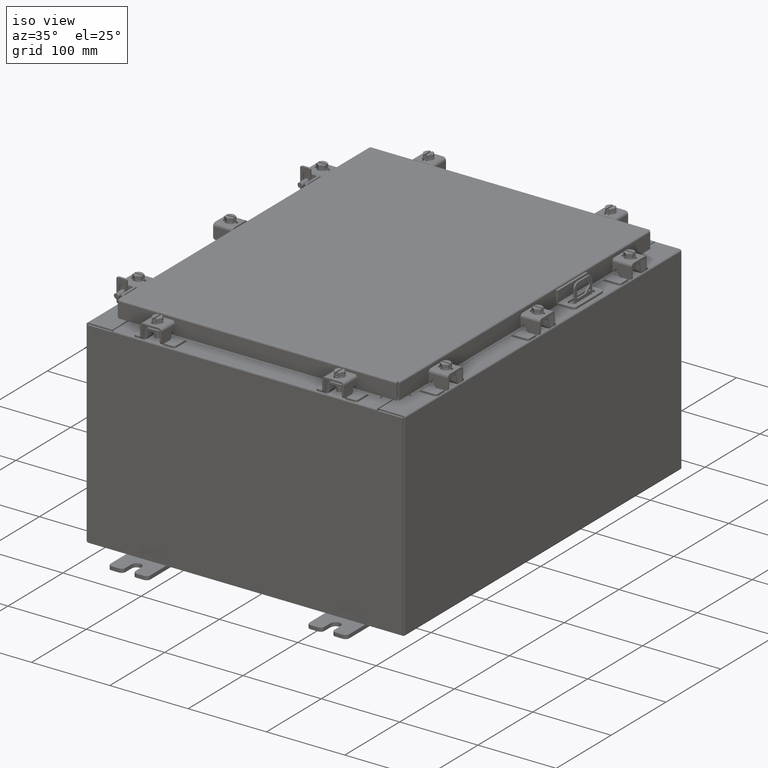
[diagram: clean part render]
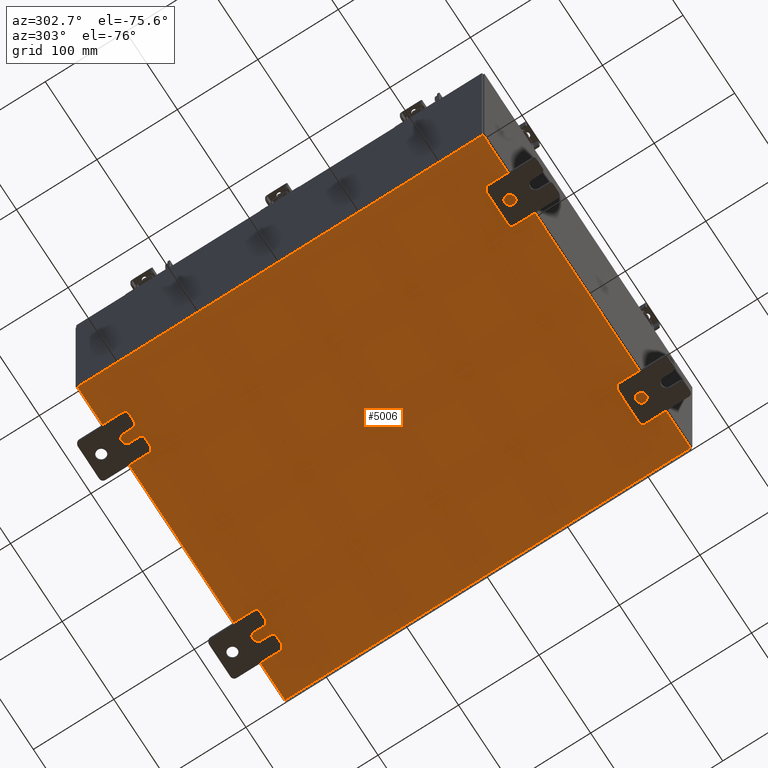
[diagram: tour spotlight — one face highlighted and labeled with its STEP entity id]
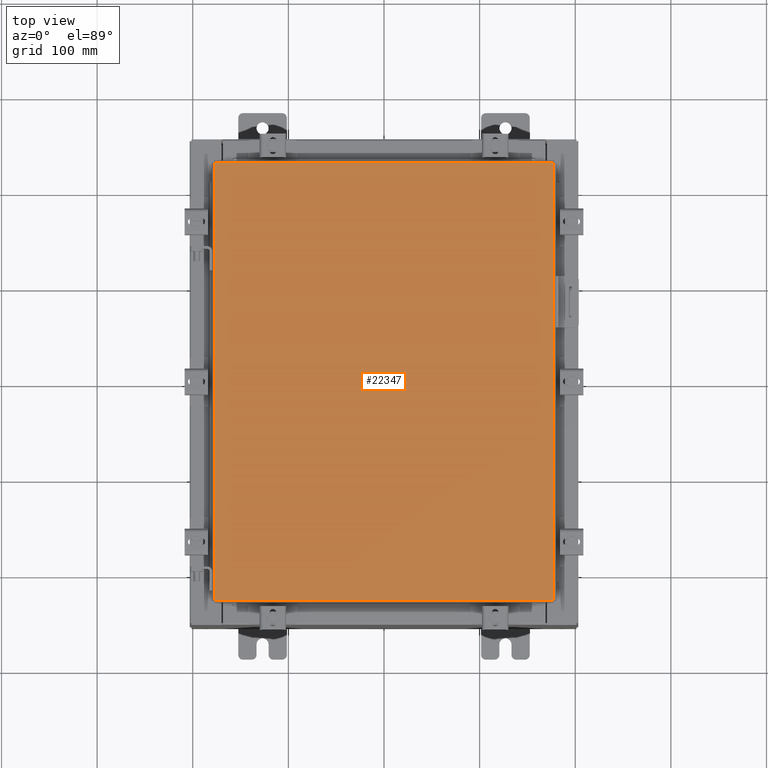
[diagram: tour spotlight — one face highlighted and labeled with its STEP entity id]
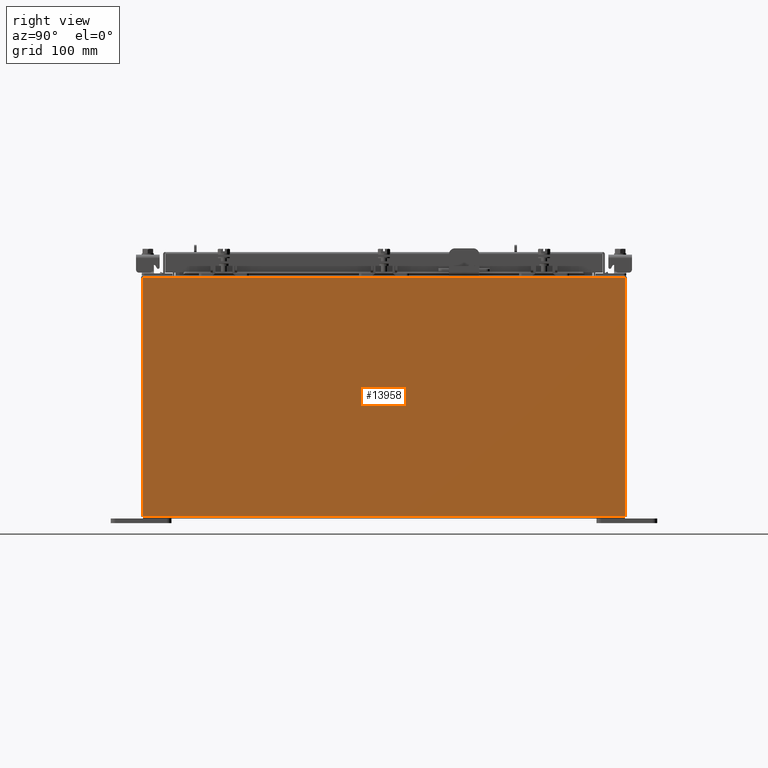
[diagram: tour spotlight — one face highlighted and labeled with its STEP entity id]
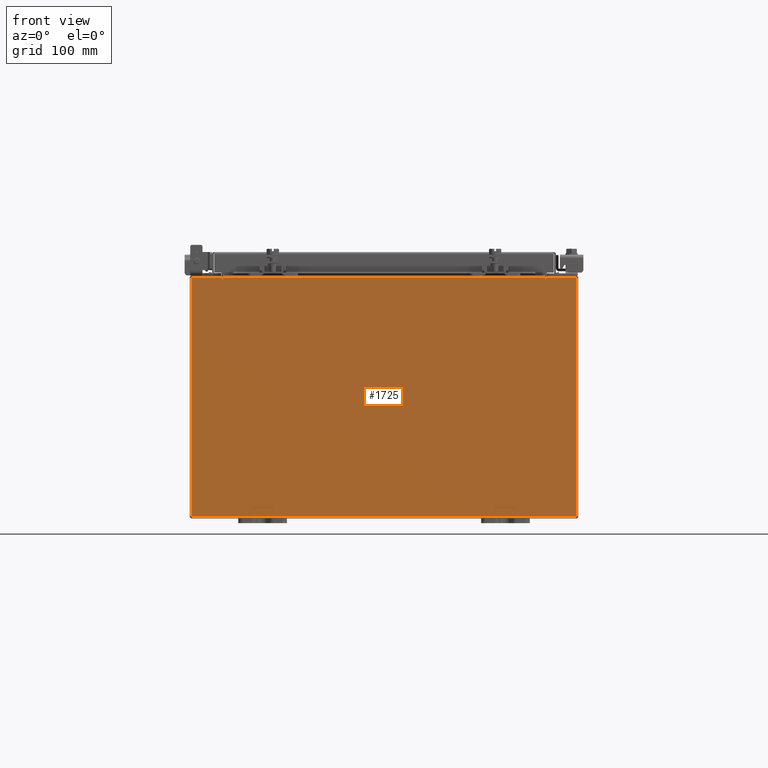
[diagram: tour spotlight — one face highlighted and labeled with its STEP entity id]
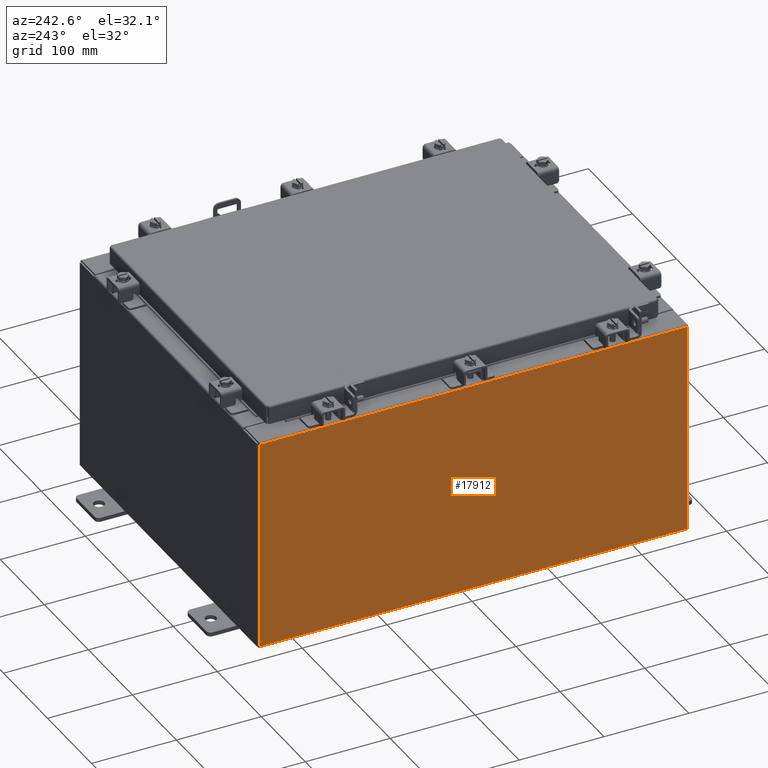
[diagram: tour spotlight — one face highlighted and labeled with its STEP entity id]
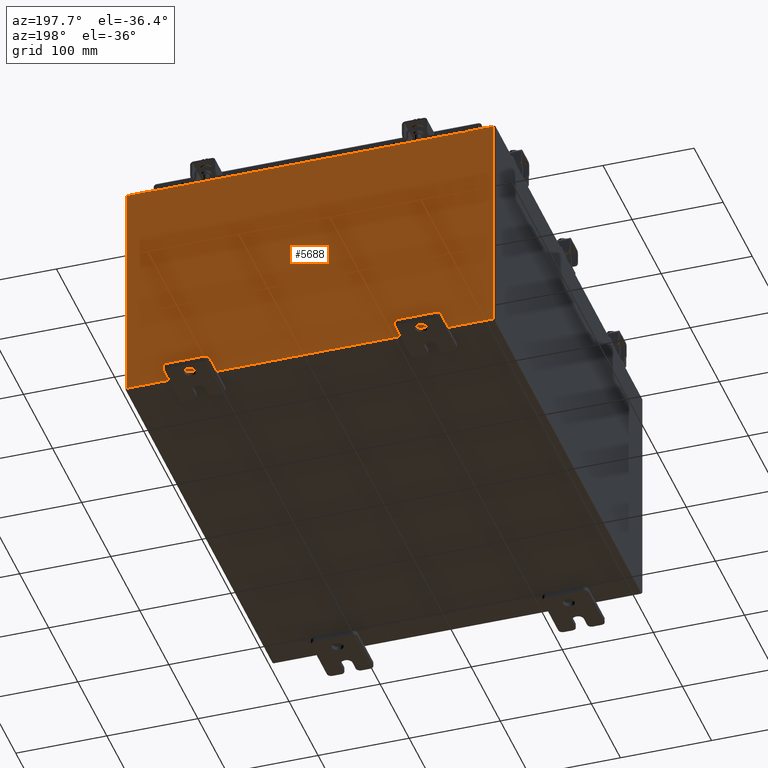
[diagram: tour spotlight — one face highlighted and labeled with its STEP entity id]
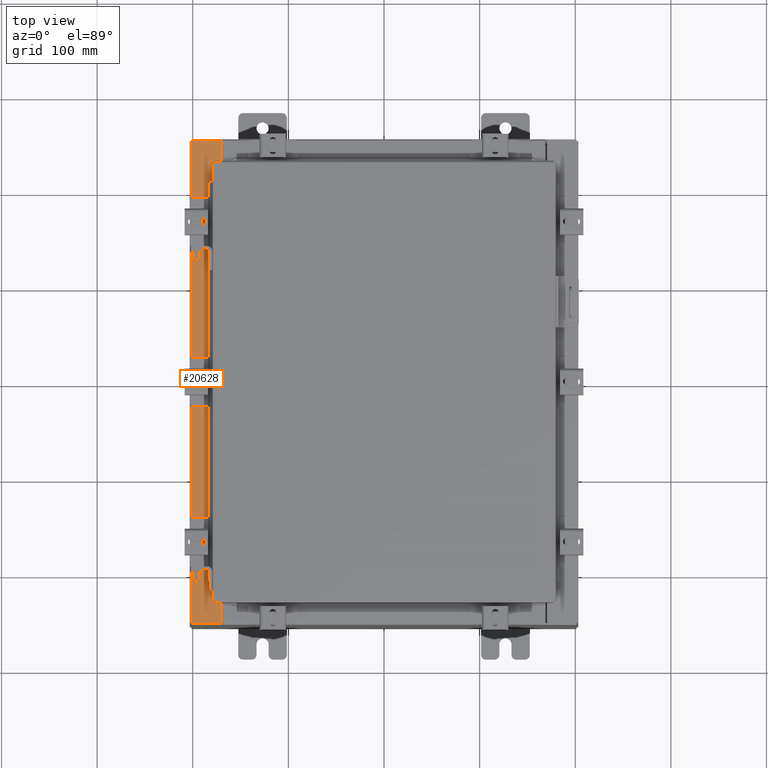
[diagram: tour spotlight — one face highlighted and labeled with its STEP entity id]
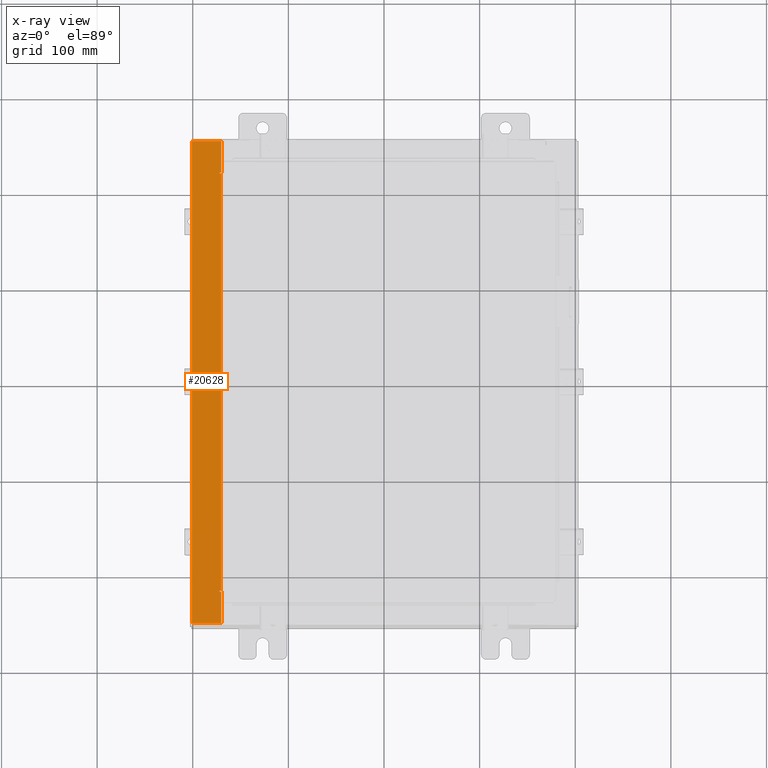
[diagram: x-ray of the same camera — body ghosted, this tour face saturated]
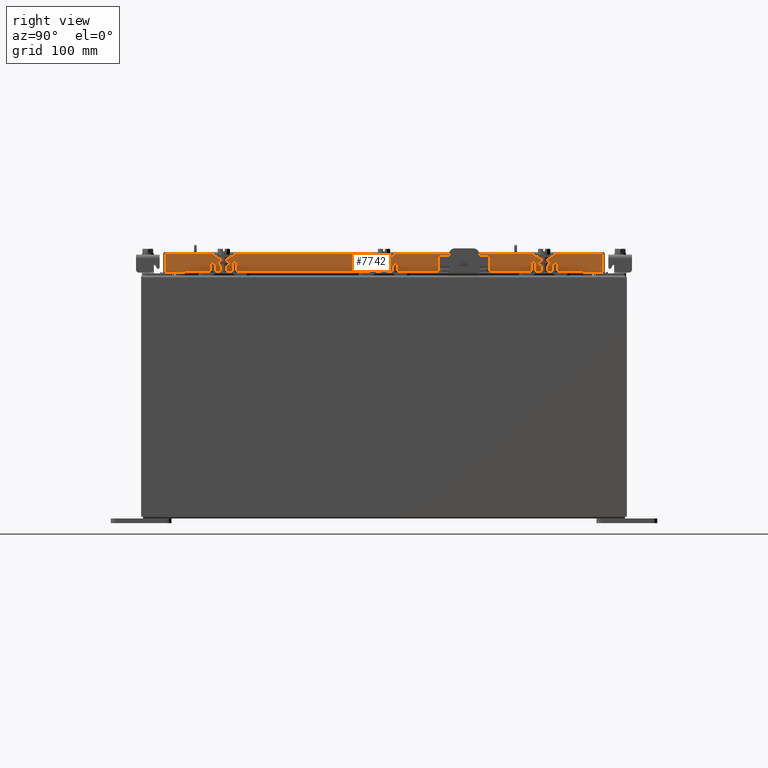
[diagram: tour spotlight — one face highlighted and labeled with its STEP entity id]
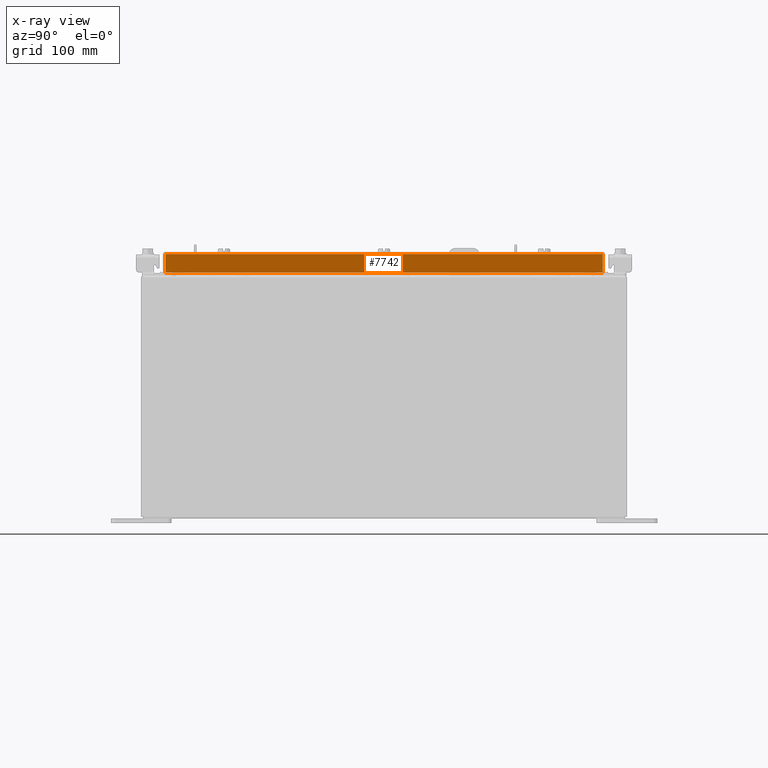
[diagram: x-ray of the same camera — body ghosted, this tour face saturated]
A machine part: a face-by-face anatomy tour. The part has 1784 B-rep faces; the first image is the clean iso view, then the 8 largest visible faces are spotlighted one at a time (largest first), each with its STEP entity span.

Face 1 — auxiliary view, entity #5006. In plain terms, the highlighted planar face has unit normal (0, 0, -1).
Definition (entity closure, byte-faithful):
#698 = LINE ( 'NONE', #4195, #13907 ) ;
#1347 = EDGE_CURVE ( 'NONE', #2079, #11125, #3552, .T. ) ;
#1677 = CARTESIAN_POINT ( 'NONE',  ( 7.912300000000001900, -9.925300000000001800, -0.07470000000000000300 ) ) ;
#2079 = VERTEX_POINT ( 'NONE', #8487 ) ;
#3381 = ORIENTED_EDGE ( 'NONE', *, *, #17591, .F. ) ;
#3552 = LINE ( 'NONE', #6478, #12176 ) ;
#4195 = CARTESIAN_POINT ( 'NONE',  ( -7.999999999999997300, -9.925300000000001800, -0.07470000000000000300 ) ) ;
#5006 = ADVANCED_FACE ( 'NONE', ( #17879 ), #14669, .T. ) ;
#6119 = DIRECTION ( 'NONE',  ( -1.000000000000000000, 0.0000000000000000000, -0.0000000000000000000 ) ) ;
#6478 = CARTESIAN_POINT ( 'NONE',  ( 7.912300000000001900, 9.925299999999998200, -0.07469999999999994700 ) ) ;
#7077 = EDGE_CURVE ( 'NONE', #2079, #16391, #11015, .T. ) ;
#7367 = EDGE_CURVE ( 'NONE', #19883, #16391, #21177, .T. ) ;
#7487 = DIRECTION ( 'NONE',  ( -0.0000000000000000000, 1.000000000000000000, -0.0000000000000000000 ) ) ;
#7911 = ORIENTED_EDGE ( 'NONE', *, *, #7077, .F. ) ;
#8487 = CARTESIAN_POINT ( 'NONE',  ( 7.912300000000001900, 9.925299999999992900, -0.07469999999999994700 ) ) ;
#8568 = DIRECTION ( 'NONE',  ( -1.000000000000000000, -0.0000000000000000000, -0.0000000000000000000 ) ) ;
#9065 = AXIS2_PLACEMENT_3D ( 'NONE', #21760, #16537, #6119 ) ;
#9740 = CARTESIAN_POINT ( 'NONE',  ( -7.912299999999997400, -9.925300000000000000, -0.07469999999999994700 ) ) ;
#11015 = LINE ( 'NONE', #20806, #20911 ) ;
#11125 = VERTEX_POINT ( 'NONE', #1677 ) ;
#11279 = VECTOR ( 'NONE', #7487, 39.37007874015748100 ) ;
#12176 = VECTOR ( 'NONE', #12677, 39.37007874015748100 ) ;
#12677 = DIRECTION ( 'NONE',  ( -0.0000000000000000000, -1.000000000000000000, -0.0000000000000000000 ) ) ;
#13907 = VECTOR ( 'NONE', #19869, 39.37007874015748100 ) ;
#14669 = PLANE ( 'NONE',  #9065 ) ;
#16164 = CARTESIAN_POINT ( 'NONE',  ( -7.912299999999997400, -9.925300000000001800, -0.07469999999999994700 ) ) ;
#16391 = VERTEX_POINT ( 'NONE', #18074 ) ;
#16537 = DIRECTION ( 'NONE',  ( 0.0000000000000000000, 0.0000000000000000000, -1.000000000000000000 ) ) ;
#17591 = EDGE_CURVE ( 'NONE', #19883, #11125, #698, .T. ) ;
#17879 = FACE_OUTER_BOUND ( 'NONE', #18231, .T. ) ;
#18070 = ORIENTED_EDGE ( 'NONE', *, *, #7367, .T. ) ;
#18074 = CARTESIAN_POINT ( 'NONE',  ( -7.912299999999997400, 9.925299999999998200, -0.07470000000000000300 ) ) ;
#18231 = EDGE_LOOP ( 'NONE', ( #3381, #18070, #7911, #19523 ) ) ;
#19523 = ORIENTED_EDGE ( 'NONE', *, *, #1347, .T. ) ;
#19869 = DIRECTION ( 'NONE',  ( 1.000000000000000000, 0.0000000000000000000, 0.0000000000000000000 ) ) ;
#19883 = VERTEX_POINT ( 'NONE', #9740 ) ;
#20806 = CARTESIAN_POINT ( 'NONE',  ( -7.999999999999997300, 9.925299999999998200, -0.07470000000000000300 ) ) ;
#20911 = VECTOR ( 'NONE', #8568, 39.37007874015748100 ) ;
#21177 = LINE ( 'NONE', #16164, #11279 ) ;
#21760 = CARTESIAN_POINT ( 'NONE',  ( 0.0000000000000000000, 0.0000000000000000000, -0.07470000000000000300 ) ) ;

Face 2 — top view, entity #22347. In plain terms, the highlighted planar face has unit normal (0, 0, -1).
Definition (entity closure, byte-faithful):
#54 = CARTESIAN_POINT ( 'NONE',  ( 6.990299999999996800, 9.006299999999996000, 3.414809992080329000E-016 ) ) ;
#558 = EDGE_CURVE ( 'NONE', #4539, #587, #17178, .T. ) ;
#587 = VERTEX_POINT ( 'NONE', #5808 ) ;
#934 = PLANE ( 'NONE',  #6105 ) ;
#1113 = VECTOR ( 'NONE', #14959, 39.37007874015748100 ) ;
#2157 = EDGE_CURVE ( 'NONE', #4047, #8421, #2523, .T. ) ;
#2523 = LINE ( 'NONE', #54, #20455 ) ;
#2892 = CARTESIAN_POINT ( 'NONE',  ( -6.990300000000003100, 9.006299999999996000, -2.048885995248197400E-016 ) ) ;
#3703 = EDGE_CURVE ( 'NONE', #8421, #4539, #19030, .T. ) ;
#4047 = VERTEX_POINT ( 'NONE', #7151 ) ;
#4125 = CARTESIAN_POINT ( 'NONE',  ( -6.990300000000003100, -9.006300000000003100, -2.048885995248197400E-016 ) ) ;
#4371 = CARTESIAN_POINT ( 'NONE',  ( 0.0000000000000000000, 0.0000000000000000000, 0.0000000000000000000 ) ) ;
#4539 = VERTEX_POINT ( 'NONE', #13400 ) ;
#5808 = CARTESIAN_POINT ( 'NONE',  ( 6.990299999999996800, -9.006300000000003100, 3.414809992080329000E-016 ) ) ;
#6103 = DIRECTION ( 'NONE',  ( -1.000000000000000000, 0.0000000000000000000, -0.0000000000000000000 ) ) ;
#6105 = AXIS2_PLACEMENT_3D ( 'NONE', #4371, #16510, #6103 ) ;
#6850 = ORIENTED_EDGE ( 'NONE', *, *, #558, .T. ) ;
#7151 = CARTESIAN_POINT ( 'NONE',  ( 6.990299999999996800, 9.006299999999996000, 3.414809992080329000E-016 ) ) ;
#8071 = CARTESIAN_POINT ( 'NONE',  ( 6.990299999999996800, -9.006300000000003100, 3.414809992080329000E-016 ) ) ;
#8359 = ORIENTED_EDGE ( 'NONE', *, *, #21775, .T. ) ;
#8421 = VERTEX_POINT ( 'NONE', #9153 ) ;
#9153 = CARTESIAN_POINT ( 'NONE',  ( -6.990300000000003100, 9.006299999999996000, -2.048885995248197400E-016 ) ) ;
#10165 = ORIENTED_EDGE ( 'NONE', *, *, #3703, .T. ) ;
#10198 = VECTOR ( 'NONE', #20307, 39.37007874015748100 ) ;
#11946 = VECTOR ( 'NONE', #21792, 39.37007874015748100 ) ;
#12091 = DIRECTION ( 'NONE',  ( -1.000000000000000000, -0.0000000000000000000, -0.0000000000000000000 ) ) ;
#13400 = CARTESIAN_POINT ( 'NONE',  ( -6.990300000000003100, -9.006300000000003100, -2.048885995248197400E-016 ) ) ;
#14959 = DIRECTION ( 'NONE',  ( 0.0000000000000000000, -1.000000000000000000, 0.0000000000000000000 ) ) ;
#16510 = DIRECTION ( 'NONE',  ( 0.0000000000000000000, 0.0000000000000000000, -1.000000000000000000 ) ) ;
#17043 = ORIENTED_EDGE ( 'NONE', *, *, #2157, .T. ) ;
#17141 = FACE_OUTER_BOUND ( 'NONE', #18462, .T. ) ;
#17178 = LINE ( 'NONE', #4125, #11946 ) ;
#18462 = EDGE_LOOP ( 'NONE', ( #6850, #8359, #17043, #10165 ) ) ;
#19030 = LINE ( 'NONE', #2892, #1113 ) ;
#20088 = LINE ( 'NONE', #8071, #10198 ) ;
#20307 = DIRECTION ( 'NONE',  ( 0.0000000000000000000, 1.000000000000000000, 0.0000000000000000000 ) ) ;
#20455 = VECTOR ( 'NONE', #12091, 39.37007874015748100 ) ;
#21775 = EDGE_CURVE ( 'NONE', #587, #4047, #20088, .T. ) ;
#21792 = DIRECTION ( 'NONE',  ( 1.000000000000000000, -0.0000000000000000000, -0.0000000000000000000 ) ) ;
#22347 = ADVANCED_FACE ( 'NONE', ( #17141 ), #934, .F. ) ;

Face 3 — right view, entity #13958. In plain terms, the highlighted planar face has unit normal (-1, 0, 0).
Definition (entity closure, byte-faithful):
#1836 = PLANE ( 'NONE',  #14242 ) ;
#2082 = DIRECTION ( 'NONE',  ( 3.523082860860888200E-015, -2.201926788038055100E-016, 1.000000000000000000 ) ) ;
#2458 = VECTOR ( 'NONE', #5806, 39.37007874015748100 ) ;
#3528 = DIRECTION ( 'NONE',  ( -1.000000000000000000, 0.0000000000000000000, 3.523082860860887800E-015 ) ) ;
#4506 = VERTEX_POINT ( 'NONE', #11578 ) ;
#5806 = DIRECTION ( 'NONE',  ( -3.523082860860888200E-015, 0.0000000000000000000, -1.000000000000000000 ) ) ;
#6150 = ORIENTED_EDGE ( 'NONE', *, *, #18957, .T. ) ;
#7523 = CARTESIAN_POINT ( 'NONE',  ( 8.000000000000001800, -9.925300000000001800, -2.844547654289869600E-014 ) ) ;
#7554 = LINE ( 'NONE', #17863, #16267 ) ;
#7873 = VECTOR ( 'NONE', #2082, 39.37007874015748100 ) ;
#7999 = CARTESIAN_POINT ( 'NONE',  ( 8.000000000000037300, -9.925300000000005300, 9.837599999999998300 ) ) ;
#8445 = LINE ( 'NONE', #19374, #7873 ) ;
#9260 = ORIENTED_EDGE ( 'NONE', *, *, #20259, .F. ) ;
#9702 = CARTESIAN_POINT ( 'NONE',  ( 8.000000000000001800, 9.925299999999992900, 0.01299999999999984700 ) ) ;
#11578 = CARTESIAN_POINT ( 'NONE',  ( 8.000000000000035500, 9.925299999999987600, 9.837599999999998300 ) ) ;
#11597 = LINE ( 'NONE', #7523, #2458 ) ;
#12157 = VECTOR ( 'NONE', #16071, 39.37007874015748100 ) ;
#13012 = CARTESIAN_POINT ( 'NONE',  ( 8.000000000000001800, -9.925300000000001800, 0.01299999999999984300 ) ) ;
#13869 = CARTESIAN_POINT ( 'NONE',  ( 8.000000000000001800, 0.0000000000000000000, -2.844547654289869600E-014 ) ) ;
#13958 = ADVANCED_FACE ( 'NONE', ( #16499 ), #1836, .F. ) ;
#14214 = DIRECTION ( 'NONE',  ( -0.0000000000000000000, -1.000000000000000000, -0.0000000000000000000 ) ) ;
#14242 = AXIS2_PLACEMENT_3D ( 'NONE', #13869, #3528, #15619 ) ;
#14293 = CARTESIAN_POINT ( 'NONE',  ( 8.000000000000035500, 9.925299999999991100, 9.837599999999998300 ) ) ;
#15160 = ORIENTED_EDGE ( 'NONE', *, *, #20841, .T. ) ;
#15619 = DIRECTION ( 'NONE',  ( 3.523082860860887800E-015, 0.0000000000000000000, 1.000000000000000000 ) ) ;
#16019 = VERTEX_POINT ( 'NONE', #7999 ) ;
#16071 = DIRECTION ( 'NONE',  ( -0.0000000000000000000, -1.000000000000000000, -0.0000000000000000000 ) ) ;
#16267 = VECTOR ( 'NONE', #14214, 39.37007874015748100 ) ;
#16499 = FACE_OUTER_BOUND ( 'NONE', #21173, .T. ) ;
#17398 = LINE ( 'NONE', #14293, #12157 ) ;
#17863 = CARTESIAN_POINT ( 'NONE',  ( 8.000000000000001800, -9.925300000000001800, 0.01299999999999984700 ) ) ;
#18957 = EDGE_CURVE ( 'NONE', #20995, #4506, #8445, .T. ) ;
#19374 = CARTESIAN_POINT ( 'NONE',  ( 8.000000000000001800, 9.925299999999998200, -2.625999814796728400E-014 ) ) ;
#20219 = EDGE_CURVE ( 'NONE', #4506, #16019, #17398, .T. ) ;
#20259 = EDGE_CURVE ( 'NONE', #20995, #20382, #7554, .T. ) ;
#20382 = VERTEX_POINT ( 'NONE', #13012 ) ;
#20841 = EDGE_CURVE ( 'NONE', #16019, #20382, #11597, .T. ) ;
#20995 = VERTEX_POINT ( 'NONE', #9702 ) ;
#21173 = EDGE_LOOP ( 'NONE', ( #21425, #15160, #9260, #6150 ) ) ;
#21425 = ORIENTED_EDGE ( 'NONE', *, *, #20219, .T. ) ;

Face 4 — front view, entity #1725. In plain terms, the highlighted planar face has unit normal (-0, 1, -0).
Definition (entity closure, byte-faithful):
#85 = AXIS2_PLACEMENT_3D ( 'NONE', #13755, #3420, #15511 ) ;
#254 = LINE ( 'NONE', #3066, #21719 ) ;
#354 = VERTEX_POINT ( 'NONE', #11195 ) ;
#424 = PLANE ( 'NONE',  #20588 ) ;
#472 = DIRECTION ( 'NONE',  ( -1.000000000000000000, -0.0000000000000000000, -0.0000000000000000000 ) ) ;
#562 = VECTOR ( 'NONE', #16745, 39.37007874015748100 ) ;
#1032 = LINE ( 'NONE', #14434, #13697 ) ;
#1296 = VERTEX_POINT ( 'NONE', #14733 ) ;
#1317 = ORIENTED_EDGE ( 'NONE', *, *, #8915, .T. ) ;
#1435 = EDGE_CURVE ( 'NONE', #1296, #18372, #15717, .T. ) ;
#1619 = CIRCLE ( 'NONE', #85, 0.01867500000000003900 ) ;
#1668 = EDGE_CURVE ( 'NONE', #11594, #18372, #14665, .T. ) ;
#1725 = ADVANCED_FACE ( 'NONE', ( #9500 ), #424, .F. ) ;
#1768 = EDGE_CURVE ( 'NONE', #8906, #354, #8985, .T. ) ;
#1803 = CARTESIAN_POINT ( 'NONE',  ( -6.637200000000000900, -0.0000000000000000000, 0.0000000000000000000 ) ) ;
#1856 = DIRECTION ( 'NONE',  ( 1.000000000000000000, 0.0000000000000000000, 0.0000000000000000000 ) ) ;
#1944 = VERTEX_POINT ( 'NONE', #4722 ) ;
#1966 = VECTOR ( 'NONE', #8466, 39.37007874015748100 ) ;
#1982 = ORIENTED_EDGE ( 'NONE', *, *, #3706, .T. ) ;
#2596 = VECTOR ( 'NONE', #16842, 39.37007874015748100 ) ;
#3066 = CARTESIAN_POINT ( 'NONE',  ( -7.925300000000002700, 0.0000000000000000000, 4.925300000000000900 ) ) ;
#3420 = DIRECTION ( 'NONE',  ( -0.0000000000000000000, 1.000000000000000000, -0.0000000000000000000 ) ) ;
#3493 = DIRECTION ( 'NONE',  ( 0.0000000000000000000, 0.0000000000000000000, -1.000000000000000000 ) ) ;
#3706 = EDGE_CURVE ( 'NONE', #20758, #15892, #14316, .T. ) ;
#4522 = CARTESIAN_POINT ( 'NONE',  ( 7.925299999999996500, 0.0000000000000000000, 4.925300000000000900 ) ) ;
#4560 = CARTESIAN_POINT ( 'NONE',  ( -6.655875000000000900, 0.0000000000000000000, 4.874950000000001000 ) ) ;
#4722 = CARTESIAN_POINT ( 'NONE',  ( -6.674550000000000900, 0.0000000000000000000, 4.874950000000001000 ) ) ;
#5458 = VECTOR ( 'NONE', #17862, 39.37007874015748100 ) ;
#5596 = CARTESIAN_POINT ( 'NONE',  ( 0.0000000000000000000, 0.0000000000000000000, 0.0000000000000000000 ) ) ;
#5643 = ORIENTED_EDGE ( 'NONE', *, *, #13190, .T. ) ;
#6123 = CARTESIAN_POINT ( 'NONE',  ( -6.637200000000000900, -1.707404996040164500E-016, 4.912300000000001000 ) ) ;
#6284 = DIRECTION ( 'NONE',  ( 0.0000000000000000000, 0.0000000000000000000, -1.000000000000000000 ) ) ;
#6643 = CARTESIAN_POINT ( 'NONE',  ( 6.637199999999999100, 0.0000000000000000000, 4.912300000000001000 ) ) ;
#6830 = CARTESIAN_POINT ( 'NONE',  ( -6.674550000000000900, 0.0000000000000000000, 4.925300000000000900 ) ) ;
#7068 = VERTEX_POINT ( 'NONE', #6830 ) ;
#7391 = VECTOR ( 'NONE', #3493, 39.37007874015748100 ) ;
#8025 = EDGE_CURVE ( 'NONE', #8906, #20758, #1032, .T. ) ;
#8466 = DIRECTION ( 'NONE',  ( 1.000000000000000000, 0.0000000000000000000, 0.0000000000000000000 ) ) ;
#8600 = VERTEX_POINT ( 'NONE', #20084 ) ;
#8805 = VECTOR ( 'NONE', #1856, 39.37007874015748100 ) ;
#8906 = VERTEX_POINT ( 'NONE', #10390 ) ;
#8915 = EDGE_CURVE ( 'NONE', #15205, #7068, #13399, .T. ) ;
#8965 = ORIENTED_EDGE ( 'NONE', *, *, #10620, .T. ) ;
#8985 = LINE ( 'NONE', #15828, #12482 ) ;
#9050 = CARTESIAN_POINT ( 'NONE',  ( -7.925300000000002700, 0.0000000000000000000, -4.925299999999998200 ) ) ;
#9075 = CARTESIAN_POINT ( 'NONE',  ( 6.637199999999999100, 0.0000000000000000000, 0.0000000000000000000 ) ) ;
#9461 = ORIENTED_EDGE ( 'NONE', *, *, #17931, .F. ) ;
#9500 = FACE_OUTER_BOUND ( 'NONE', #11032, .T. ) ;
#9610 = AXIS2_PLACEMENT_3D ( 'NONE', #4560, #16707, #6284 ) ;
#9888 = DIRECTION ( 'NONE',  ( 0.0000000000000000000, -1.000000000000000000, 0.0000000000000000000 ) ) ;
#10390 = CARTESIAN_POINT ( 'NONE',  ( 6.674549999999998200, 0.0000000000000000000, 4.925300000000000900 ) ) ;
#10620 = EDGE_CURVE ( 'NONE', #15892, #8600, #22385, .T. ) ;
#11032 = EDGE_LOOP ( 'NONE', ( #13836, #22379, #9461, #14987, #16097, #21624, #21770, #14677, #1982, #8965, #5643, #1317 ) ) ;
#11195 = CARTESIAN_POINT ( 'NONE',  ( 6.674549999999999100, 0.0000000000000000000, 4.874950000000001000 ) ) ;
#11594 = VERTEX_POINT ( 'NONE', #22175 ) ;
#12446 = CARTESIAN_POINT ( 'NONE',  ( 7.925299999999996500, 0.0000000000000000000, 4.925300000000000900 ) ) ;
#12482 = VECTOR ( 'NONE', #21093, 39.37007874015748100 ) ;
#13190 = EDGE_CURVE ( 'NONE', #8600, #15205, #254, .T. ) ;
#13361 = EDGE_CURVE ( 'NONE', #354, #11594, #1619, .T. ) ;
#13399 = LINE ( 'NONE', #20914, #8805 ) ;
#13697 = VECTOR ( 'NONE', #17688, 39.37007874015748100 ) ;
#13755 = CARTESIAN_POINT ( 'NONE',  ( 6.655874999999998200, 0.0000000000000000000, 4.874950000000001000 ) ) ;
#13836 = ORIENTED_EDGE ( 'NONE', *, *, #16562, .F. ) ;
#14316 = LINE ( 'NONE', #4522, #562 ) ;
#14434 = CARTESIAN_POINT ( 'NONE',  ( -7.925300000000002700, 0.0000000000000000000, 4.925300000000000900 ) ) ;
#14665 = LINE ( 'NONE', #9075, #5458 ) ;
#14677 = ORIENTED_EDGE ( 'NONE', *, *, #8025, .T. ) ;
#14733 = CARTESIAN_POINT ( 'NONE',  ( -6.637200000000000900, -1.707404996040164500E-016, 4.912300000000001000 ) ) ;
#14987 = ORIENTED_EDGE ( 'NONE', *, *, #1435, .T. ) ;
#15131 = DIRECTION ( 'NONE',  ( -0.0000000000000000000, -0.0000000000000000000, 1.000000000000000000 ) ) ;
#15205 = VERTEX_POINT ( 'NONE', #19104 ) ;
#15237 = DIRECTION ( 'NONE',  ( 0.0000000000000000000, -0.0000000000000000000, -1.000000000000000000 ) ) ;
#15283 = LINE ( 'NONE', #16755, #2596 ) ;
#15511 = DIRECTION ( 'NONE',  ( 0.0000000000000000000, 0.0000000000000000000, -1.000000000000000000 ) ) ;
#15717 = LINE ( 'NONE', #6123, #1966 ) ;
#15828 = CARTESIAN_POINT ( 'NONE',  ( 6.674549999999999100, 0.0000000000000000000, 0.0000000000000000000 ) ) ;
#15892 = VERTEX_POINT ( 'NONE', #17614 ) ;
#16097 = ORIENTED_EDGE ( 'NONE', *, *, #1668, .F. ) ;
#16562 = EDGE_CURVE ( 'NONE', #1944, #7068, #15283, .T. ) ;
#16707 = DIRECTION ( 'NONE',  ( -0.0000000000000000000, 1.000000000000000000, -0.0000000000000000000 ) ) ;
#16745 = DIRECTION ( 'NONE',  ( 0.0000000000000000000, 0.0000000000000000000, -1.000000000000000000 ) ) ;
#16755 = CARTESIAN_POINT ( 'NONE',  ( -6.674550000000000900, -0.0000000000000000000, 0.0000000000000000000 ) ) ;
#16842 = DIRECTION ( 'NONE',  ( 0.0000000000000000000, 0.0000000000000000000, 1.000000000000000000 ) ) ;
#17075 = CARTESIAN_POINT ( 'NONE',  ( -6.637200000000000900, -0.0000000000000000000, 4.874950000000001000 ) ) ;
#17614 = CARTESIAN_POINT ( 'NONE',  ( 7.925299999999996500, 0.0000000000000000000, -4.925299999999998200 ) ) ;
#17688 = DIRECTION ( 'NONE',  ( 1.000000000000000000, 0.0000000000000000000, 0.0000000000000000000 ) ) ;
#17714 = EDGE_CURVE ( 'NONE', #18804, #1944, #21081, .T. ) ;
#17862 = DIRECTION ( 'NONE',  ( 0.0000000000000000000, 0.0000000000000000000, 1.000000000000000000 ) ) ;
#17931 = EDGE_CURVE ( 'NONE', #1296, #18804, #18321, .T. ) ;
#18260 = VECTOR ( 'NONE', #472, 39.37007874015748100 ) ;
#18321 = LINE ( 'NONE', #1803, #7391 ) ;
#18372 = VERTEX_POINT ( 'NONE', #6643 ) ;
#18804 = VERTEX_POINT ( 'NONE', #17075 ) ;
#19104 = CARTESIAN_POINT ( 'NONE',  ( -7.925300000000002700, 0.0000000000000000000, 4.925300000000000900 ) ) ;
#20084 = CARTESIAN_POINT ( 'NONE',  ( -7.925300000000002700, 0.0000000000000000000, -4.925299999999998200 ) ) ;
#20588 = AXIS2_PLACEMENT_3D ( 'NONE', #5596, #9888, #15237 ) ;
#20758 = VERTEX_POINT ( 'NONE', #12446 ) ;
#20914 = CARTESIAN_POINT ( 'NONE',  ( -7.925300000000002700, 0.0000000000000000000, 4.925300000000000900 ) ) ;
#21081 = CIRCLE ( 'NONE', #9610, 0.01867500000000003900 ) ;
#21093 = DIRECTION ( 'NONE',  ( 0.0000000000000000000, 0.0000000000000000000, -1.000000000000000000 ) ) ;
#21624 = ORIENTED_EDGE ( 'NONE', *, *, #13361, .F. ) ;
#21719 = VECTOR ( 'NONE', #15131, 39.37007874015748100 ) ;
#21770 = ORIENTED_EDGE ( 'NONE', *, *, #1768, .F. ) ;
#22175 = CARTESIAN_POINT ( 'NONE',  ( 6.637199999999997300, 0.0000000000000000000, 4.874950000000001000 ) ) ;
#22379 = ORIENTED_EDGE ( 'NONE', *, *, #17714, .F. ) ;
#22385 = LINE ( 'NONE', #9050, #18260 ) ;

Face 5 — auxiliary view, entity #17912. In plain terms, the highlighted planar face has unit normal (1, 0, 0).
Definition (entity closure, byte-faithful):
#1028 = EDGE_CURVE ( 'NONE', #9233, #15085, #9486, .T. ) ;
#2033 = ORIENTED_EDGE ( 'NONE', *, *, #1028, .T. ) ;
#2291 = ORIENTED_EDGE ( 'NONE', *, *, #22172, .T. ) ;
#2522 = CARTESIAN_POINT ( 'NONE',  ( -8.000000000000032000, 9.925299999999998200, 9.837599999999998300 ) ) ;
#3210 = VECTOR ( 'NONE', #16042, 39.37007874015748100 ) ;
#3362 = CARTESIAN_POINT ( 'NONE',  ( -7.999999999999997300, 0.0000000000000000000, -2.844547654289867700E-014 ) ) ;
#3637 = DIRECTION ( 'NONE',  ( 3.523082860860888200E-015, 0.0000000000000000000, -1.000000000000000000 ) ) ;
#5239 = CARTESIAN_POINT ( 'NONE',  ( -7.999999999999997300, -9.925300000000000000, 0.01299999999999984700 ) ) ;
#5779 = LINE ( 'NONE', #19216, #14432 ) ;
#6532 = CARTESIAN_POINT ( 'NONE',  ( -7.999999999999997300, 9.925299999999998200, 0.01299999999999984300 ) ) ;
#6881 = PLANE ( 'NONE',  #12685 ) ;
#7129 = VERTEX_POINT ( 'NONE', #5239 ) ;
#7897 = EDGE_LOOP ( 'NONE', ( #12388, #2033, #12125, #2291 ) ) ;
#8306 = LINE ( 'NONE', #14265, #3210 ) ;
#8622 = DIRECTION ( 'NONE',  ( 1.000000000000000000, 0.0000000000000000000, 3.523082860860887800E-015 ) ) ;
#9233 = VERTEX_POINT ( 'NONE', #2522 ) ;
#9486 = LINE ( 'NONE', #14047, #18248 ) ;
#10402 = LINE ( 'NONE', #14142, #18642 ) ;
#11637 = VERTEX_POINT ( 'NONE', #13394 ) ;
#12125 = ORIENTED_EDGE ( 'NONE', *, *, #15347, .F. ) ;
#12388 = ORIENTED_EDGE ( 'NONE', *, *, #16809, .T. ) ;
#12685 = AXIS2_PLACEMENT_3D ( 'NONE', #3362, #8622, #20856 ) ;
#13394 = CARTESIAN_POINT ( 'NONE',  ( -8.000000000000032000, -9.925300000000000000, 9.837599999999998300 ) ) ;
#14047 = CARTESIAN_POINT ( 'NONE',  ( -7.999999999999997300, 9.925299999999998200, -2.844547654289867700E-014 ) ) ;
#14142 = CARTESIAN_POINT ( 'NONE',  ( -7.999999999999997300, 9.925299999999998200, 0.01299999999999984700 ) ) ;
#14265 = CARTESIAN_POINT ( 'NONE',  ( -7.999999999999997300, -9.925300000000001800, -2.844547654289867700E-014 ) ) ;
#14432 = VECTOR ( 'NONE', #19147, 39.37007874015748100 ) ;
#15085 = VERTEX_POINT ( 'NONE', #6532 ) ;
#15347 = EDGE_CURVE ( 'NONE', #7129, #15085, #10402, .T. ) ;
#15906 = DIRECTION ( 'NONE',  ( -0.0000000000000000000, 1.000000000000000000, -0.0000000000000000000 ) ) ;
#16042 = DIRECTION ( 'NONE',  ( -3.523082860860888200E-015, 0.0000000000000000000, 1.000000000000000000 ) ) ;
#16809 = EDGE_CURVE ( 'NONE', #11637, #9233, #5779, .T. ) ;
#17912 = ADVANCED_FACE ( 'NONE', ( #21348 ), #6881, .F. ) ;
#18248 = VECTOR ( 'NONE', #3637, 39.37007874015748100 ) ;
#18642 = VECTOR ( 'NONE', #15906, 39.37007874015748100 ) ;
#19147 = DIRECTION ( 'NONE',  ( 0.0000000000000000000, 1.000000000000000000, 0.0000000000000000000 ) ) ;
#19216 = CARTESIAN_POINT ( 'NONE',  ( -8.000000000000032000, -9.925300000000001800, 9.837599999999998300 ) ) ;
#20856 = DIRECTION ( 'NONE',  ( 3.523082860860887800E-015, 0.0000000000000000000, -1.000000000000000000 ) ) ;
#21348 = FACE_OUTER_BOUND ( 'NONE', #7897, .T. ) ;
#22172 = EDGE_CURVE ( 'NONE', #7129, #11637, #8306, .T. ) ;

Face 6 — auxiliary view, entity #5688. In plain terms, the highlighted planar face has unit normal (0, -1, 0).
Definition (entity closure, byte-faithful):
#26 = LINE ( 'NONE', #9774, #17925 ) ;
#37 = EDGE_CURVE ( 'NONE', #94, #6052, #1751, .T. ) ;
#94 = VERTEX_POINT ( 'NONE', #6124 ) ;
#496 = FACE_OUTER_BOUND ( 'NONE', #9619, .T. ) ;
#505 = LINE ( 'NONE', #9587, #13718 ) ;
#516 = VECTOR ( 'NONE', #10817, 39.37007874015748100 ) ;
#633 = VECTOR ( 'NONE', #2503, 39.37007874015748100 ) ;
#761 = EDGE_CURVE ( 'NONE', #21549, #94, #13841, .T. ) ;
#827 = DIRECTION ( 'NONE',  ( 0.0000000000000000000, -1.000000000000000000, 0.0000000000000000000 ) ) ;
#839 = AXIS2_PLACEMENT_3D ( 'NONE', #4199, #16302, #21618 ) ;
#990 = ORIENTED_EDGE ( 'NONE', *, *, #15634, .F. ) ;
#1440 = EDGE_CURVE ( 'NONE', #8398, #21112, #7051, .T. ) ;
#1606 = EDGE_CURVE ( 'NONE', #21549, #21574, #15759, .T. ) ;
#1751 = CIRCLE ( 'NONE', #839, 0.01867500000000003900 ) ;
#1878 = LINE ( 'NONE', #4900, #11005 ) ;
#2439 = AXIS2_PLACEMENT_3D ( 'NONE', #3148, #15217, #4857 ) ;
#2503 = DIRECTION ( 'NONE',  ( 0.0000000000000000000, 0.0000000000000000000, -1.000000000000000000 ) ) ;
#2548 = VECTOR ( 'NONE', #14213, 39.37007874015748100 ) ;
#2643 = ORIENTED_EDGE ( 'NONE', *, *, #12867, .F. ) ;
#3148 = CARTESIAN_POINT ( 'NONE',  ( 6.655874999999998200, 0.0000000000000000000, 4.874950000000001000 ) ) ;
#3175 = CARTESIAN_POINT ( 'NONE',  ( 6.637199999999997300, 0.0000000000000000000, 4.874950000000001000 ) ) ;
#3220 = LINE ( 'NONE', #5608, #16490 ) ;
#3652 = VECTOR ( 'NONE', #11826, 39.37007874015748100 ) ;
#3745 = EDGE_CURVE ( 'NONE', #7723, #21891, #26, .T. ) ;
#3861 = CARTESIAN_POINT ( 'NONE',  ( -6.674550000000000900, 0.0000000000000000000, 4.925300000000000900 ) ) ;
#4198 = LINE ( 'NONE', #22262, #3652 ) ;
#4199 = CARTESIAN_POINT ( 'NONE',  ( -6.655875000000000900, 0.0000000000000000000, 4.874950000000001000 ) ) ;
#4401 = CARTESIAN_POINT ( 'NONE',  ( -6.637200000000000900, -0.0000000000000000000, 0.0000000000000000000 ) ) ;
#4679 = DIRECTION ( 'NONE',  ( -0.0000000000000000000, -0.0000000000000000000, 1.000000000000000000 ) ) ;
#4857 = DIRECTION ( 'NONE',  ( 0.0000000000000000000, 0.0000000000000000000, -1.000000000000000000 ) ) ;
#4886 = ORIENTED_EDGE ( 'NONE', *, *, #1440, .T. ) ;
#4900 = CARTESIAN_POINT ( 'NONE',  ( -7.925300000000002700, 0.0000000000000000000, -4.925299999999998200 ) ) ;
#5085 = LINE ( 'NONE', #5627, #516 ) ;
#5188 = EDGE_CURVE ( 'NONE', #21112, #7723, #1878, .T. ) ;
#5508 = ORIENTED_EDGE ( 'NONE', *, *, #14109, .F. ) ;
#5608 = CARTESIAN_POINT ( 'NONE',  ( 6.637199999999999100, 0.0000000000000000000, 0.0000000000000000000 ) ) ;
#5627 = CARTESIAN_POINT ( 'NONE',  ( 6.674549999999999100, 0.0000000000000000000, 0.0000000000000000000 ) ) ;
#5669 = CARTESIAN_POINT ( 'NONE',  ( 6.637199999999999100, 0.0000000000000000000, 4.912300000000001000 ) ) ;
#5688 = ADVANCED_FACE ( 'NONE', ( #496 ), #7644, .F. ) ;
#5691 = DIRECTION ( 'NONE',  ( 0.0000000000000000000, 0.0000000000000000000, 1.000000000000000000 ) ) ;
#6052 = VERTEX_POINT ( 'NONE', #6887 ) ;
#6124 = CARTESIAN_POINT ( 'NONE',  ( -6.637200000000000900, -0.0000000000000000000, 4.874950000000001000 ) ) ;
#6177 = LINE ( 'NONE', #19952, #21208 ) ;
#6887 = CARTESIAN_POINT ( 'NONE',  ( -6.674550000000000900, 0.0000000000000000000, 4.874950000000001000 ) ) ;
#7051 = LINE ( 'NONE', #9077, #15187 ) ;
#7203 = VERTEX_POINT ( 'NONE', #15760 ) ;
#7331 = EDGE_CURVE ( 'NONE', #12494, #21574, #3220, .T. ) ;
#7509 = EDGE_CURVE ( 'NONE', #21891, #18039, #505, .T. ) ;
#7644 = PLANE ( 'NONE',  #19924 ) ;
#7723 = VERTEX_POINT ( 'NONE', #20618 ) ;
#8398 = VERTEX_POINT ( 'NONE', #17788 ) ;
#8433 = CARTESIAN_POINT ( 'NONE',  ( 7.925299999999996500, 0.0000000000000000000, -4.925299999999998200 ) ) ;
#8653 = DIRECTION ( 'NONE',  ( 0.0000000000000000000, 0.0000000000000000000, -1.000000000000000000 ) ) ;
#8701 = ORIENTED_EDGE ( 'NONE', *, *, #1606, .T. ) ;
#9077 = CARTESIAN_POINT ( 'NONE',  ( 7.925299999999996500, 0.0000000000000000000, 4.925300000000000900 ) ) ;
#9386 = CARTESIAN_POINT ( 'NONE',  ( 0.0000000000000000000, 0.0000000000000000000, 0.0000000000000000000 ) ) ;
#9449 = DIRECTION ( 'NONE',  ( 0.0000000000000000000, 0.0000000000000000000, 1.000000000000000000 ) ) ;
#9558 = EDGE_CURVE ( 'NONE', #18937, #8398, #4198, .T. ) ;
#9587 = CARTESIAN_POINT ( 'NONE',  ( -7.925300000000002700, 0.0000000000000000000, 4.925300000000000900 ) ) ;
#9619 = EDGE_LOOP ( 'NONE', ( #2643, #21825, #15306, #8701, #12142, #990, #5508, #11336, #4886, #19293, #21266, #21497 ) ) ;
#9774 = CARTESIAN_POINT ( 'NONE',  ( -7.925300000000002700, 0.0000000000000000000, 4.925300000000000900 ) ) ;
#10123 = CIRCLE ( 'NONE', #2439, 0.01867500000000003900 ) ;
#10817 = DIRECTION ( 'NONE',  ( 0.0000000000000000000, 0.0000000000000000000, -1.000000000000000000 ) ) ;
#11005 = VECTOR ( 'NONE', #17054, 39.37007874015748100 ) ;
#11336 = ORIENTED_EDGE ( 'NONE', *, *, #9558, .T. ) ;
#11341 = DIRECTION ( 'NONE',  ( 1.000000000000000000, 0.0000000000000000000, 0.0000000000000000000 ) ) ;
#11826 = DIRECTION ( 'NONE',  ( 1.000000000000000000, 0.0000000000000000000, 0.0000000000000000000 ) ) ;
#12142 = ORIENTED_EDGE ( 'NONE', *, *, #7331, .F. ) ;
#12494 = VERTEX_POINT ( 'NONE', #3175 ) ;
#12867 = EDGE_CURVE ( 'NONE', #6052, #18039, #6177, .T. ) ;
#12883 = DIRECTION ( 'NONE',  ( 0.0000000000000000000, -0.0000000000000000000, -1.000000000000000000 ) ) ;
#13718 = VECTOR ( 'NONE', #11341, 39.37007874015748100 ) ;
#13841 = LINE ( 'NONE', #4401, #633 ) ;
#14109 = EDGE_CURVE ( 'NONE', #18937, #7203, #5085, .T. ) ;
#14213 = DIRECTION ( 'NONE',  ( 1.000000000000000000, 0.0000000000000000000, 0.0000000000000000000 ) ) ;
#15187 = VECTOR ( 'NONE', #8653, 39.37007874015748100 ) ;
#15217 = DIRECTION ( 'NONE',  ( -0.0000000000000000000, 1.000000000000000000, -0.0000000000000000000 ) ) ;
#15306 = ORIENTED_EDGE ( 'NONE', *, *, #761, .F. ) ;
#15634 = EDGE_CURVE ( 'NONE', #7203, #12494, #10123, .T. ) ;
#15759 = LINE ( 'NONE', #21398, #2548 ) ;
#15760 = CARTESIAN_POINT ( 'NONE',  ( 6.674549999999999100, 0.0000000000000000000, 4.874950000000001000 ) ) ;
#16302 = DIRECTION ( 'NONE',  ( -0.0000000000000000000, 1.000000000000000000, -0.0000000000000000000 ) ) ;
#16490 = VECTOR ( 'NONE', #5691, 39.37007874015748100 ) ;
#17010 = CARTESIAN_POINT ( 'NONE',  ( -7.925300000000002700, 0.0000000000000000000, 4.925300000000000900 ) ) ;
#17054 = DIRECTION ( 'NONE',  ( -1.000000000000000000, -0.0000000000000000000, -0.0000000000000000000 ) ) ;
#17788 = CARTESIAN_POINT ( 'NONE',  ( 7.925299999999996500, 0.0000000000000000000, 4.925300000000000900 ) ) ;
#17925 = VECTOR ( 'NONE', #4679, 39.37007874015748100 ) ;
#18039 = VERTEX_POINT ( 'NONE', #3861 ) ;
#18937 = VERTEX_POINT ( 'NONE', #20908 ) ;
#19293 = ORIENTED_EDGE ( 'NONE', *, *, #5188, .T. ) ;
#19924 = AXIS2_PLACEMENT_3D ( 'NONE', #9386, #827, #12883 ) ;
#19952 = CARTESIAN_POINT ( 'NONE',  ( -6.674550000000000900, -0.0000000000000000000, 0.0000000000000000000 ) ) ;
#20618 = CARTESIAN_POINT ( 'NONE',  ( -7.925300000000002700, 0.0000000000000000000, -4.925299999999998200 ) ) ;
#20908 = CARTESIAN_POINT ( 'NONE',  ( 6.674549999999998200, 0.0000000000000000000, 4.925300000000000900 ) ) ;
#21112 = VERTEX_POINT ( 'NONE', #8433 ) ;
#21208 = VECTOR ( 'NONE', #9449, 39.37007874015748100 ) ;
#21243 = CARTESIAN_POINT ( 'NONE',  ( -6.637200000000000900, -1.707404996040164500E-016, 4.912300000000001000 ) ) ;
#21266 = ORIENTED_EDGE ( 'NONE', *, *, #3745, .T. ) ;
#21398 = CARTESIAN_POINT ( 'NONE',  ( -6.637200000000000900, -1.707404996040164500E-016, 4.912300000000001000 ) ) ;
#21497 = ORIENTED_EDGE ( 'NONE', *, *, #7509, .T. ) ;
#21549 = VERTEX_POINT ( 'NONE', #21243 ) ;
#21574 = VERTEX_POINT ( 'NONE', #5669 ) ;
#21618 = DIRECTION ( 'NONE',  ( 0.0000000000000000000, 0.0000000000000000000, -1.000000000000000000 ) ) ;
#21825 = ORIENTED_EDGE ( 'NONE', *, *, #37, .F. ) ;
#21891 = VERTEX_POINT ( 'NONE', #17010 ) ;
#22262 = CARTESIAN_POINT ( 'NONE',  ( -7.925300000000002700, 0.0000000000000000000, 4.925300000000000900 ) ) ;

Face 7 — top view, entity #20628. An x-ray twin of the same camera follows (body ghosted, this face saturated) — the face is partly hidden behind the body. In plain terms, the highlighted planar face has unit normal (0, -0, -1).
Definition (entity closure, byte-faithful):
#378 = ORIENTED_EDGE ( 'NONE', *, *, #11317, .F. ) ;
#474 = DIRECTION ( 'NONE',  ( -1.000000000000000000, 0.0000000000000000000, 0.0000000000000000000 ) ) ;
#677 = DIRECTION ( 'NONE',  ( -5.349571789159774300E-015, 1.100963394019027400E-016, 1.000000000000000000 ) ) ;
#757 = DIRECTION ( 'NONE',  ( -5.349571789159774300E-015, 1.100963394019027400E-016, 1.000000000000000000 ) ) ;
#935 = CIRCLE ( 'NONE', #5212, 0.01867499999999949400 ) ;
#1374 = VECTOR ( 'NONE', #11620, 39.37007874015748100 ) ;
#1744 = VERTEX_POINT ( 'NONE', #4800 ) ;
#1800 = ORIENTED_EDGE ( 'NONE', *, *, #10273, .F. ) ;
#1954 = AXIS2_PLACEMENT_3D ( 'NONE', #10970, #677, #12723 ) ;
#1988 = CARTESIAN_POINT ( 'NONE',  ( -7.912300000000032100, -9.925300000000001800, 9.925300000000000000 ) ) ;
#2047 = CARTESIAN_POINT ( 'NONE',  ( -5.335691853495931300E-014, 9.925299999999998200, 9.925300000000042600 ) ) ;
#2297 = VERTEX_POINT ( 'NONE', #19475 ) ;
#2421 = CARTESIAN_POINT ( 'NONE',  ( -6.699700000000030200, -9.925300000000005300, 9.925300000000007100 ) ) ;
#2638 = AXIS2_PLACEMENT_3D ( 'NONE', #18925, #20693, #10166 ) ;
#2909 = ORIENTED_EDGE ( 'NONE', *, *, #7829, .T. ) ;
#3147 = ORIENTED_EDGE ( 'NONE', *, *, #8388, .T. ) ;
#3236 = LINE ( 'NONE', #9692, #7780 ) ;
#3478 = VERTEX_POINT ( 'NONE', #1988 ) ;
#3588 = ORIENTED_EDGE ( 'NONE', *, *, #7219, .T. ) ;
#4035 = CARTESIAN_POINT ( 'NONE',  ( -6.750050000000037200, -8.631100000000008900, 9.925300000000005300 ) ) ;
#4234 = LINE ( 'NONE', #9013, #22225 ) ;
#4252 = VERTEX_POINT ( 'NONE', #2421 ) ;
#4275 = LINE ( 'NONE', #2047, #17601 ) ;
#4278 = ORIENTED_EDGE ( 'NONE', *, *, #9108, .F. ) ;
#4313 = CARTESIAN_POINT ( 'NONE',  ( -6.712700000000037200, -8.593750000000008900, 9.925300000000001800 ) ) ;
#4610 = DIRECTION ( 'NONE',  ( 1.000000000000000000, 0.0000000000000000000, 0.0000000000000000000 ) ) ;
#4800 = CARTESIAN_POINT ( 'NONE',  ( -6.699700000000032000, 9.925299999999998200, 9.925300000000007100 ) ) ;
#5142 = ORIENTED_EDGE ( 'NONE', *, *, #8679, .F. ) ;
#5212 = AXIS2_PLACEMENT_3D ( 'NONE', #10742, #757, #12820 ) ;
#5718 = VECTOR ( 'NONE', #11295, 39.37007874015748100 ) ;
#6411 = CARTESIAN_POINT ( 'NONE',  ( -7.912300000000032100, 9.925299999999998200, 9.925299999999998200 ) ) ;
#6420 = CARTESIAN_POINT ( 'NONE',  ( -6.699700000000030200, -8.631100000000007100, 9.925300000000007100 ) ) ;
#6674 = EDGE_CURVE ( 'NONE', #10212, #9717, #14573, .T. ) ;
#6724 = PLANE ( 'NONE',  #2638 ) ;
#6825 = EDGE_CURVE ( 'NONE', #10212, #1744, #3236, .T. ) ;
#7076 = ORIENTED_EDGE ( 'NONE', *, *, #6674, .F. ) ;
#7219 = EDGE_CURVE ( 'NONE', #1744, #16614, #4275, .T. ) ;
#7669 = EDGE_CURVE ( 'NONE', #3478, #16614, #19789, .T. ) ;
#7780 = VECTOR ( 'NONE', #21951, 39.37007874015748100 ) ;
#7817 = CARTESIAN_POINT ( 'NONE',  ( -6.712700000000037200, 8.593750000000000000, 9.925300000000001800 ) ) ;
#7829 = EDGE_CURVE ( 'NONE', #4252, #18696, #21693, .T. ) ;
#7975 = VECTOR ( 'NONE', #13293, 39.37007874015748100 ) ;
#8318 = ORIENTED_EDGE ( 'NONE', *, *, #6825, .T. ) ;
#8388 = EDGE_CURVE ( 'NONE', #3478, #4252, #4234, .T. ) ;
#8679 = EDGE_CURVE ( 'NONE', #12805, #18696, #12588, .T. ) ;
#8687 = CARTESIAN_POINT ( 'NONE',  ( -6.699700000000031100, 3.551267523747806600E-016, 9.925300000000007100 ) ) ;
#8712 = LINE ( 'NONE', #14972, #13852 ) ;
#9013 = CARTESIAN_POINT ( 'NONE',  ( -8.875432178759111600E-014, -9.925300000000030200, 9.925300000000042600 ) ) ;
#9108 = EDGE_CURVE ( 'NONE', #16459, #22226, #20563, .T. ) ;
#9139 = CARTESIAN_POINT ( 'NONE',  ( -6.712700000000037200, 8.593749999999998200, 9.925300000000001800 ) ) ;
#9692 = CARTESIAN_POINT ( 'NONE',  ( -6.699700000000031100, 3.551267523747806600E-016, 9.925300000000007100 ) ) ;
#9717 = VERTEX_POINT ( 'NONE', #17277 ) ;
#9976 = EDGE_CURVE ( 'NONE', #22226, #12805, #935, .T. ) ;
#10166 = DIRECTION ( 'NONE',  ( -1.000000000000000000, 0.0000000000000000000, -5.349571789159774300E-015 ) ) ;
#10212 = VERTEX_POINT ( 'NONE', #21829 ) ;
#10273 = EDGE_CURVE ( 'NONE', #2297, #21608, #8712, .T. ) ;
#10742 = CARTESIAN_POINT ( 'NONE',  ( -6.750050000000037200, -8.612425000000007100, 9.925300000000001800 ) ) ;
#10842 = EDGE_CURVE ( 'NONE', #21608, #16459, #14934, .T. ) ;
#10970 = CARTESIAN_POINT ( 'NONE',  ( -6.750050000000037200, 8.612424999999998200, 9.925300000000001800 ) ) ;
#11295 = DIRECTION ( 'NONE',  ( -0.0000000000000000000, -1.000000000000000000, -0.0000000000000000000 ) ) ;
#11317 = EDGE_CURVE ( 'NONE', #9717, #2297, #16014, .T. ) ;
#11620 = DIRECTION ( 'NONE',  ( -1.000000000000000000, 0.0000000000000000000, -4.340572780399628200E-014 ) ) ;
#11721 = CARTESIAN_POINT ( 'NONE',  ( -7.912300000000032100, 9.925299999999998200, 9.925299999999998200 ) ) ;
#11738 = ORIENTED_EDGE ( 'NONE', *, *, #7669, .F. ) ;
#12330 = DIRECTION ( 'NONE',  ( -1.000000000000000000, 9.633926942233118900E-046, -5.349571789159775100E-015 ) ) ;
#12588 = LINE ( 'NONE', #20305, #7975 ) ;
#12723 = DIRECTION ( 'NONE',  ( 1.000000000000000000, 0.0000000000000000000, 0.0000000000000000000 ) ) ;
#12805 = VERTEX_POINT ( 'NONE', #4035 ) ;
#12820 = DIRECTION ( 'NONE',  ( 1.000000000000000000, 0.0000000000000000000, 0.0000000000000000000 ) ) ;
#12900 = VECTOR ( 'NONE', #20928, 39.37007874015748100 ) ;
#13293 = DIRECTION ( 'NONE',  ( 1.000000000000000000, 0.0000000000000000000, 4.340572780399439500E-014 ) ) ;
#13852 = VECTOR ( 'NONE', #4610, 39.37007874015748100 ) ;
#14215 = DIRECTION ( 'NONE',  ( 1.000000000000000000, -3.566381192773182900E-015, 5.349571789159775100E-015 ) ) ;
#14573 = LINE ( 'NONE', #22144, #1374 ) ;
#14872 = FACE_OUTER_BOUND ( 'NONE', #21035, .T. ) ;
#14934 = LINE ( 'NONE', #7817, #5718 ) ;
#14972 = CARTESIAN_POINT ( 'NONE',  ( -6.750050000000037200, 8.593749999999998200, 9.925300000000001800 ) ) ;
#15084 = VECTOR ( 'NONE', #15224, 39.37007874015748100 ) ;
#15224 = DIRECTION ( 'NONE',  ( -0.0000000000000000000, 1.000000000000000000, -1.100963394019027600E-016 ) ) ;
#15319 = VECTOR ( 'NONE', #474, 39.37007874015748100 ) ;
#16014 = CIRCLE ( 'NONE', #1954, 0.01867499999999949400 ) ;
#16459 = VERTEX_POINT ( 'NONE', #4313 ) ;
#16614 = VERTEX_POINT ( 'NONE', #6411 ) ;
#17277 = CARTESIAN_POINT ( 'NONE',  ( -6.750050000000037200, 8.631099999999998200, 9.925300000000005300 ) ) ;
#17601 = VECTOR ( 'NONE', #12330, 39.37007874015748100 ) ;
#17759 = ORIENTED_EDGE ( 'NONE', *, *, #10842, .F. ) ;
#18696 = VERTEX_POINT ( 'NONE', #6420 ) ;
#18863 = ORIENTED_EDGE ( 'NONE', *, *, #9976, .F. ) ;
#18925 = CARTESIAN_POINT ( 'NONE',  ( -5.335691853495932000E-014, 1.092739197465709800E-015, 9.925300000000042600 ) ) ;
#19475 = CARTESIAN_POINT ( 'NONE',  ( -6.750050000000037200, 8.593749999999998200, 9.925300000000005300 ) ) ;
#19789 = LINE ( 'NONE', #11721, #15084 ) ;
#20305 = CARTESIAN_POINT ( 'NONE',  ( -6.750050000000037200, -8.631100000000008900, 9.925300000000001800 ) ) ;
#20563 = LINE ( 'NONE', #21300, #15319 ) ;
#20628 = ADVANCED_FACE ( 'NONE', ( #14872 ), #6724, .F. ) ;
#20693 = DIRECTION ( 'NONE',  ( 5.349571789159774300E-015, -1.100963394019027400E-016, -1.000000000000000000 ) ) ;
#20928 = DIRECTION ( 'NONE',  ( -1.100963394019027400E-016, 1.000000000000000000, -1.100963394019033500E-016 ) ) ;
#21035 = EDGE_LOOP ( 'NONE', ( #7076, #8318, #3588, #11738, #3147, #2909, #5142, #18863, #4278, #17759, #1800, #378 ) ) ;
#21300 = CARTESIAN_POINT ( 'NONE',  ( -6.712700000000037200, -8.593750000000008900, 9.925300000000001800 ) ) ;
#21443 = CARTESIAN_POINT ( 'NONE',  ( -6.750050000000037200, -8.593750000000008900, 9.925300000000007100 ) ) ;
#21608 = VERTEX_POINT ( 'NONE', #9139 ) ;
#21693 = LINE ( 'NONE', #8687, #12900 ) ;
#21829 = CARTESIAN_POINT ( 'NONE',  ( -6.699700000000032000, 8.631099999999998200, 9.925300000000007100 ) ) ;
#21951 = DIRECTION ( 'NONE',  ( -1.100963394019027400E-016, 1.000000000000000000, -1.100963394019033500E-016 ) ) ;
#22144 = CARTESIAN_POINT ( 'NONE',  ( -6.699700000000032000, 8.631099999999998200, 9.925300000000005300 ) ) ;
#22225 = VECTOR ( 'NONE', #14215, 39.37007874015748100 ) ;
#22226 = VERTEX_POINT ( 'NONE', #21443 ) ;

Face 8 — right view, entity #7742. An x-ray twin of the same camera follows (body ghosted, this face saturated) — the face is partly hidden behind the body. In plain terms, the highlighted planar face has unit normal (1, 0, 0).
Definition (entity closure, byte-faithful):
#255 = EDGE_CURVE ( 'NONE', #16265, #17153, #21576, .T. ) ;
#574 = LINE ( 'NONE', #1283, #13234 ) ;
#758 = ORIENTED_EDGE ( 'NONE', *, *, #14162, .T. ) ;
#932 = CARTESIAN_POINT ( 'NONE',  ( 7.077999999999996700, 9.005157864376265300, -0.08769999999999951400 ) ) ;
#1283 = CARTESIAN_POINT ( 'NONE',  ( 7.077999999999999400, -9.094000000000003000, -0.8499999999999996400 ) ) ;
#2558 = EDGE_CURVE ( 'NONE', #12461, #20397, #5154, .T. ) ;
#2982 = ORIENTED_EDGE ( 'NONE', *, *, #5850, .F. ) ;
#3237 = ORIENTED_EDGE ( 'NONE', *, *, #6210, .F. ) ;
#3259 = VECTOR ( 'NONE', #21167, 39.37007874015748100 ) ;
#3356 = ORIENTED_EDGE ( 'NONE', *, *, #21652, .T. ) ;
#3869 = CARTESIAN_POINT ( 'NONE',  ( 7.077999999999999400, -9.005157864376267100, -0.8499999999999996400 ) ) ;
#4000 = LINE ( 'NONE', #7500, #12640 ) ;
#5010 = PLANE ( 'NONE',  #14472 ) ;
#5154 = LINE ( 'NONE', #14746, #13266 ) ;
#5781 = DIRECTION ( 'NONE',  ( -1.693590113897317100E-031, -1.000000000000000000, 6.008022858289562200E-017 ) ) ;
#5850 = EDGE_CURVE ( 'NONE', #15924, #12461, #574, .T. ) ;
#6017 = ORIENTED_EDGE ( 'NONE', *, *, #255, .F. ) ;
#6114 = DIRECTION ( 'NONE',  ( 0.0000000000000000000, -1.000000000000000000, 0.0000000000000000000 ) ) ;
#6210 = EDGE_CURVE ( 'NONE', #20397, #16265, #21762, .T. ) ;
#6466 = CARTESIAN_POINT ( 'NONE',  ( 7.077999999999996700, 8.255157864376267100, -0.8500000000000024200 ) ) ;
#6669 = CARTESIAN_POINT ( 'NONE',  ( 7.077999999999996700, 0.0000000000000000000, 2.021285296895433900E-014 ) ) ;
#6738 = DIRECTION ( 'NONE',  ( 1.000000000000000000, 0.0000000000000000000, 2.818880942772360100E-015 ) ) ;
#7187 = CARTESIAN_POINT ( 'NONE',  ( 7.077999999999999400, -9.094000000000003000, -0.8499999999999996400 ) ) ;
#7243 = LINE ( 'NONE', #12698, #20638 ) ;
#7500 = CARTESIAN_POINT ( 'NONE',  ( 7.077999999999996700, -5.269036046721131800E-018, -0.08769999999999951400 ) ) ;
#7639 = DIRECTION ( 'NONE',  ( -2.818880942772360100E-015, -6.982962677686267500E-015, 1.000000000000000000 ) ) ;
#7698 = CARTESIAN_POINT ( 'NONE',  ( 7.077999999999996700, -9.005157864376272400, -0.07469999999999978000 ) ) ;
#7742 = ADVANCED_FACE ( 'NONE', ( #9371 ), #5010, .T. ) ;
#9259 = VECTOR ( 'NONE', #7639, 39.37007874015748100 ) ;
#9301 = VERTEX_POINT ( 'NONE', #932 ) ;
#9371 = FACE_OUTER_BOUND ( 'NONE', #19208, .T. ) ;
#9580 = CARTESIAN_POINT ( 'NONE',  ( 7.077999999999996700, -8.255157864376263500, -0.8500000000000024200 ) ) ;
#9823 = DIRECTION ( 'NONE',  ( 0.0000000000000000000, -1.000000000000000000, 0.0000000000000000000 ) ) ;
#12461 = VERTEX_POINT ( 'NONE', #6466 ) ;
#12640 = VECTOR ( 'NONE', #5781, 39.37007874015748100 ) ;
#12698 = CARTESIAN_POINT ( 'NONE',  ( 7.077999999999996700, 9.005157864376265300, 8.309553424256678000E-014 ) ) ;
#13234 = VECTOR ( 'NONE', #9823, 39.37007874015748100 ) ;
#13266 = VECTOR ( 'NONE', #6114, 39.37007874015748100 ) ;
#14162 = EDGE_CURVE ( 'NONE', #9301, #17153, #4000, .T. ) ;
#14439 = DIRECTION ( 'NONE',  ( -2.818880942772360100E-015, -6.982962677686267500E-015, 1.000000000000000000 ) ) ;
#14472 = AXIS2_PLACEMENT_3D ( 'NONE', #6669, #6738, #18939 ) ;
#14746 = CARTESIAN_POINT ( 'NONE',  ( 7.077999999999996700, 8.255157864376267100, -0.8500000000000024200 ) ) ;
#15250 = ORIENTED_EDGE ( 'NONE', *, *, #2558, .F. ) ;
#15924 = VERTEX_POINT ( 'NONE', #20015 ) ;
#16265 = VERTEX_POINT ( 'NONE', #3869 ) ;
#17153 = VERTEX_POINT ( 'NONE', #18420 ) ;
#18420 = CARTESIAN_POINT ( 'NONE',  ( 7.077999999999996700, -9.005157864376272400, -0.08769999999999897300 ) ) ;
#18939 = DIRECTION ( 'NONE',  ( 2.818880942772360100E-015, 0.0000000000000000000, -1.000000000000000000 ) ) ;
#19208 = EDGE_LOOP ( 'NONE', ( #6017, #3237, #15250, #2982, #3356, #758 ) ) ;
#20015 = CARTESIAN_POINT ( 'NONE',  ( 7.077999999999999400, 9.005157864376270600, -0.8499999999999996400 ) ) ;
#20397 = VERTEX_POINT ( 'NONE', #9580 ) ;
#20638 = VECTOR ( 'NONE', #14439, 39.37007874015748100 ) ;
#21167 = DIRECTION ( 'NONE',  ( 0.0000000000000000000, -1.000000000000000000, 0.0000000000000000000 ) ) ;
#21576 = LINE ( 'NONE', #7698, #9259 ) ;
#21652 = EDGE_CURVE ( 'NONE', #15924, #9301, #7243, .T. ) ;
#21762 = LINE ( 'NONE', #7187, #3259 ) ;